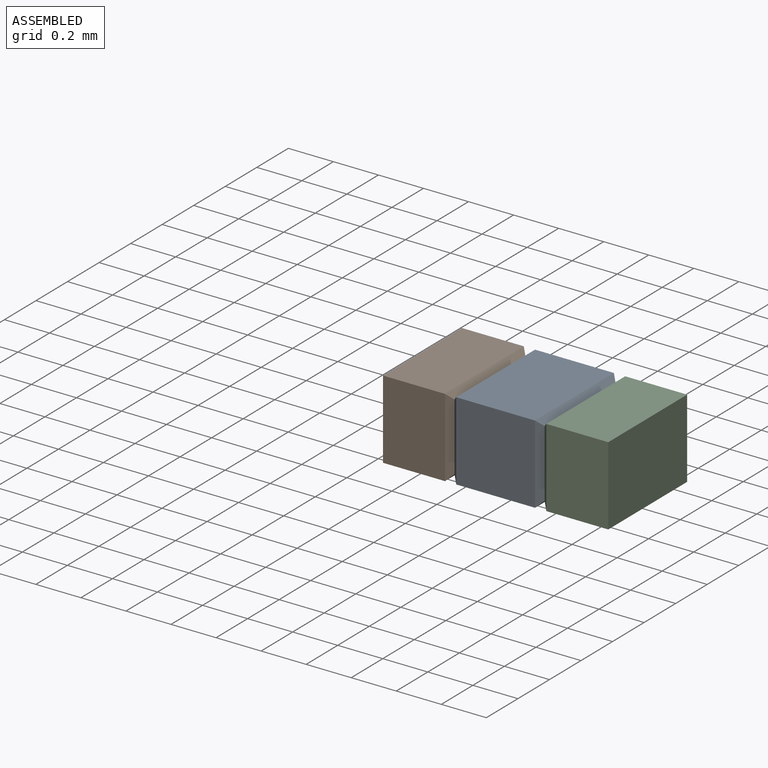
[diagram: assembled view]
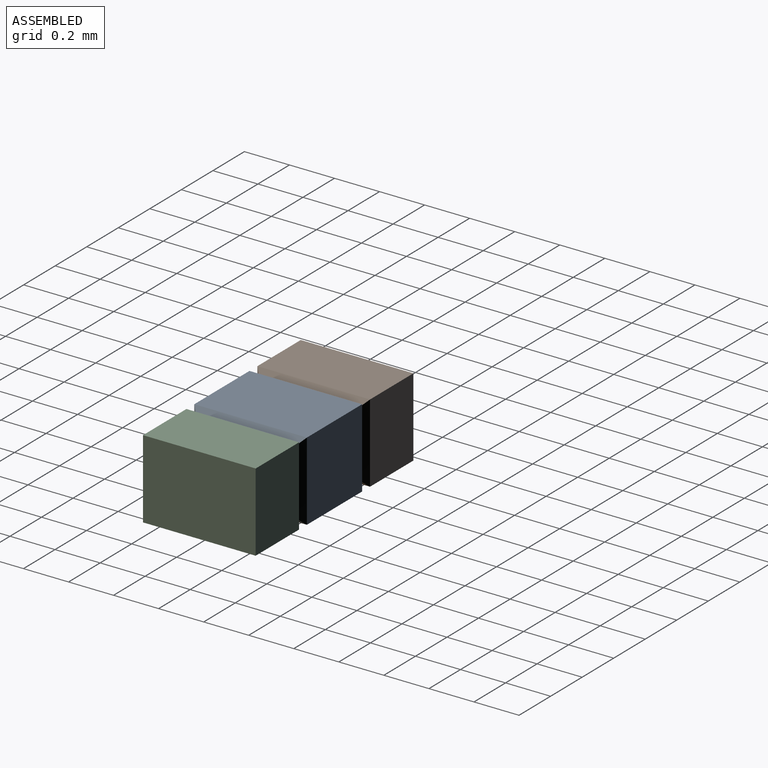
[diagram: assembled view, second angle]
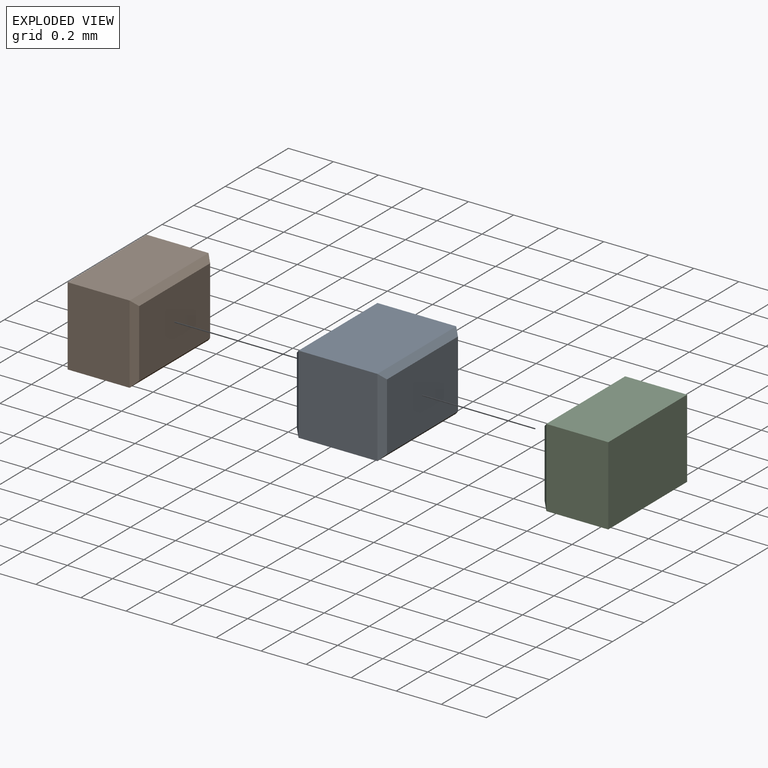
[diagram: exploded view]
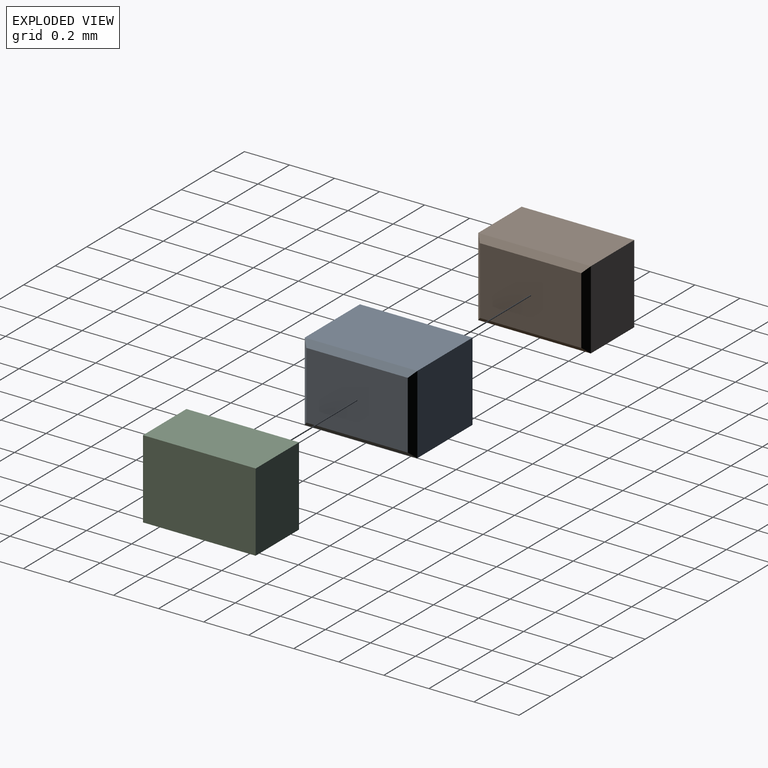
[diagram: exploded view, second angle]
ASSEMBLY  parts=3 mates=2
PART A: 14 faces, bbox 0.4x0.5x0.4 mm
  f0: plane 0.45x0.3mm, normal (1,0,0), area 0.1mm2, adj f6,f7,f8,f9
  f1: plane 0.35x0.35mm, normal (0,1,0), area 0.1mm2, adj f4,f5,f7,f11
  f2: plane 0.45x0.3mm, normal (-1,0,0), area 0.1mm2, adj f10,f11,f12,f13
  f3: plane 0.35x0.35mm, normal (0,-1,0), area 0.1mm2, adj f4,f5,f8,f12
  f4: plane 0.5x0.35mm, normal (0,0,1), area 0.2mm2, adj f1,f3,f9,f13
  f5: plane 0.5x0.35mm, normal (0,0,-1), area 0.2mm2, adj f1,f3,f6,f10
  f6: plane 0.5x0.03mm, normal (0.71,0,-0.71), area 0mm2, adj f0,f5,f7,f8
  f7: plane 0.35x0.03mm, normal (0.71,0.71,0), area 0mm2, adj f0,f1,f6,f9
  f8: plane 0.35x0.03mm, normal (0.71,-0.71,0), area 0mm2, adj f0,f3,f6,f9
  f9: plane 0.5x0.03mm, normal (0.71,0,0.71), area 0mm2, adj f0,f4,f7,f8
  f10: plane 0.5x0.03mm, normal (-0.71,0,-0.71), area 0mm2, adj f2,f5,f11,f12
  f11: plane 0.35x0.03mm, normal (-0.71,0.71,0), area 0mm2, adj f1,f2,f10,f13
  f12: plane 0.35x0.03mm, normal (-0.71,-0.71,0), area 0mm2, adj f2,f3,f10,f13
  f13: plane 0.5x0.03mm, normal (-0.71,0,0.71), area 0mm2, adj f2,f4,f11,f12
PART B: 10 faces, bbox 0.3x0.5x0.4 mm
  f0: plane 0.45x0.3mm, normal (1,0,0), area 0.1mm2, adj f6,f7,f8,f9
  f1: plane 0.35x0.28mm, normal (0,1,0), area 0.1mm2, adj f2,f4,f5,f9
  f2: plane 0.5x0.35mm, normal (-1,0,0), area 0.2mm2, adj f1,f3,f4,f5
  f3: plane 0.35x0.28mm, normal (0,-1,0), area 0.1mm2, adj f2,f4,f5,f6
  f4: plane 0.5x0.28mm, normal (0,0,1), area 0.1mm2, adj f1,f2,f3,f7
  f5: plane 0.5x0.28mm, normal (0,0,-1), area 0.1mm2, adj f1,f2,f3,f8
  f6: plane 0.35x0.03mm, normal (0.71,-0.71,0), area 0mm2, adj f0,f3,f7,f8
  f7: plane 0.5x0.03mm, normal (0.71,0,0.71), area 0mm2, adj f0,f4,f6,f9
  f8: plane 0.5x0.03mm, normal (0.71,0,-0.71), area 0mm2, adj f0,f5,f6,f9
  f9: plane 0.35x0.03mm, normal (0.71,0.71,0), area 0mm2, adj f0,f1,f7,f8
PART C: 10 faces, bbox 0.3x0.5x0.4 mm
  f0: plane 0.5x0.35mm, normal (1,0,0), area 0.2mm2, adj f1,f3,f4,f5
  f1: plane 0.35x0.28mm, normal (0,1,0), area 0.1mm2, adj f0,f4,f5,f7
  f2: plane 0.45x0.3mm, normal (-1,0,0), area 0.1mm2, adj f6,f7,f8,f9
  f3: plane 0.35x0.28mm, normal (0,-1,0), area 0.1mm2, adj f0,f4,f5,f8
  f4: plane 0.5x0.28mm, normal (0,0,1), area 0.1mm2, adj f0,f1,f3,f9
  f5: plane 0.5x0.28mm, normal (0,0,-1), area 0.1mm2, adj f0,f1,f3,f6
  f6: plane 0.5x0.03mm, normal (-0.71,0,-0.71), area 0mm2, adj f2,f5,f7,f8
  f7: plane 0.35x0.03mm, normal (-0.71,0.71,0), area 0mm2, adj f1,f2,f6,f9
  f8: plane 0.35x0.03mm, normal (-0.71,-0.71,0), area 0mm2, adj f2,f3,f6,f9
  f9: plane 0.5x0.03mm, normal (-0.71,0,0.71), area 0mm2, adj f2,f4,f7,f8
PLACE A rot(axis=(0,-1,0),180deg) t=(0.16,0,0.35)mm
PLACE B t=(0.71,0,0)mm
PLACE C t=(-0.09,0,0)mm
MATE fastened B.f0 <-> A.f0  axis (1,0,0) through (-0.04,0,0.17)mm
MATE fastened A.f2 <-> C.f2  axis (1,0,0) through (0.36,0,0.17)mm
